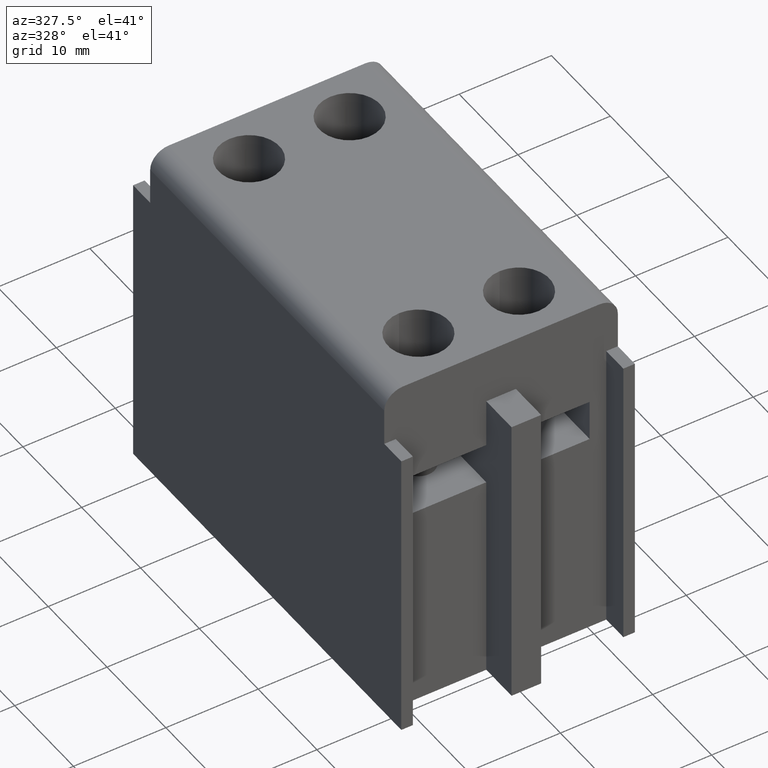
[diagram: clean part render]
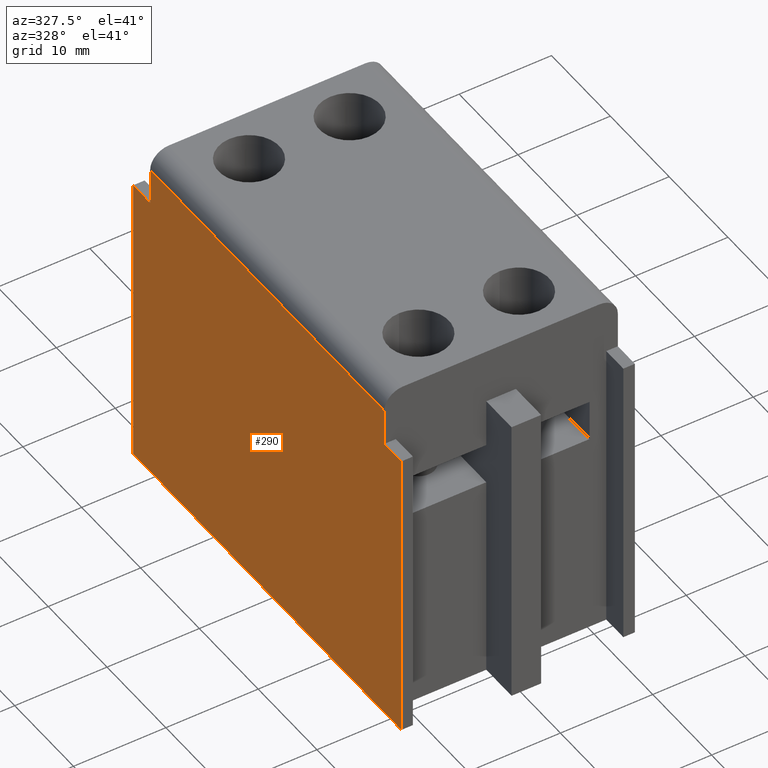
[diagram: same view with one face highlighted and labeled with its STEP entity id]
A machine part, auxiliary view. The second image highlights one B-rep face of the part: STEP entity #290.
In plain terms, the highlighted planar face has unit normal (-1, 0, 0).
Its self-contained STEP definition (entity closure, byte-faithful):
#117=FACE_OUTER_BOUND('',#622,.T.);
#290=ADVANCED_FACE('',(#117),#427,.T.);
#427=PLANE('',#2674);
#622=EDGE_LOOP('',(#883,#884,#885,#886,#887,#888,#889,#890));
#883=ORIENTED_EDGE('',*,*,#1782,.T.);
#884=ORIENTED_EDGE('',*,*,#1811,.T.);
#885=ORIENTED_EDGE('',*,*,#1812,.F.);
#886=ORIENTED_EDGE('',*,*,#1813,.F.);
#887=ORIENTED_EDGE('',*,*,#1814,.F.);
#888=ORIENTED_EDGE('',*,*,#1721,.T.);
#889=ORIENTED_EDGE('',*,*,#1815,.T.);
#890=ORIENTED_EDGE('',*,*,#1816,.T.);
#1481=VERTEX_POINT('',#3550);
#1482=VERTEX_POINT('',#3552);
#1541=VERTEX_POINT('',#3678);
#1542=VERTEX_POINT('',#3680);
#1560=VERTEX_POINT('',#3732);
#1561=VERTEX_POINT('',#3734);
#1562=VERTEX_POINT('',#3736);
#1563=VERTEX_POINT('',#3739);
#1721=EDGE_CURVE('',#1482,#1481,#2071,.T.);
#1782=EDGE_CURVE('',#1542,#1541,#2117,.T.);
#1811=EDGE_CURVE('',#1541,#1560,#2145,.T.);
#1812=EDGE_CURVE('',#1561,#1560,#2146,.T.);
#1813=EDGE_CURVE('',#1562,#1561,#2147,.T.);
#1814=EDGE_CURVE('',#1482,#1562,#2148,.T.);
#1815=EDGE_CURVE('',#1481,#1563,#2149,.T.);
#1816=EDGE_CURVE('',#1563,#1542,#2150,.T.);
#2071=LINE('',#3551,#2365);
#2117=LINE('',#3679,#2411);
#2145=LINE('',#3731,#2439);
#2146=LINE('',#3733,#2440);
#2147=LINE('',#3735,#2441);
#2148=LINE('',#3737,#2442);
#2149=LINE('',#3738,#2443);
#2150=LINE('',#3740,#2444);
#2365=VECTOR('',#2855,1.);
#2411=VECTOR('',#2945,1.);
#2439=VECTOR('',#2985,1.);
#2440=VECTOR('',#2986,1.);
#2441=VECTOR('',#2987,1.);
#2442=VECTOR('',#2988,1.);
#2443=VECTOR('',#2989,1.);
#2444=VECTOR('',#2990,1.);
#2674=AXIS2_PLACEMENT_3D('',#3741,#2991,#2992);
#2855=DIRECTION('',(0.,-1.,0.));
#2945=DIRECTION('',(0.,0.,1.));
#2985=DIRECTION('',(0.,1.,0.));
#2986=DIRECTION('',(0.,5.52326749582304E-014,1.));
#2987=DIRECTION('',(0.,-1.,5.84600674716756E-014));
#2988=DIRECTION('',(0.,5.84600674716756E-014,1.));
#2989=DIRECTION('',(0.,-3.22739251344522E-015,1.));
#2990=DIRECTION('',(0.,1.,3.22739251344522E-015));
#2991=DIRECTION('',(-1.,0.,0.));
#2992=DIRECTION('',(0.,0.,1.));
#3550=CARTESIAN_POINT('',(-12.65,-22.7999999999998,75.5));
#3551=CARTESIAN_POINT('',(-12.65,6.93889390390723E-015,75.5));
#3552=CARTESIAN_POINT('',(-12.65,22.800000000004,75.4999999999987));
#3678=CARTESIAN_POINT('',(-12.65,-19.9,112.));
#3679=CARTESIAN_POINT('',(-12.65,-19.9,108.));
#3680=CARTESIAN_POINT('',(-12.65,-19.9,108.));
#3731=CARTESIAN_POINT('',(-12.65,19.9000000000062,112.));
#3732=CARTESIAN_POINT('',(-12.65,19.9000000000061,112.));
#3733=CARTESIAN_POINT('',(-12.65,19.9000000000059,107.999999999999));
#3734=CARTESIAN_POINT('',(-12.65,19.9000000000059,107.999999999999));
#3735=CARTESIAN_POINT('',(-12.65,24.2000000000059,107.999999999999));
#3736=CARTESIAN_POINT('',(-12.65,22.8000000000059,107.999999999999));
#3737=CARTESIAN_POINT('',(-12.65,22.8000000000038,72.2499999999987));
#3738=CARTESIAN_POINT('',(-12.65,-22.7999999999998,72.25));
#3739=CARTESIAN_POINT('',(-12.65,-22.8,108.));
#3740=CARTESIAN_POINT('',(-12.65,-24.2,108.));
#3741=CARTESIAN_POINT('',(-12.65,1.07016788684984E-012,114.));